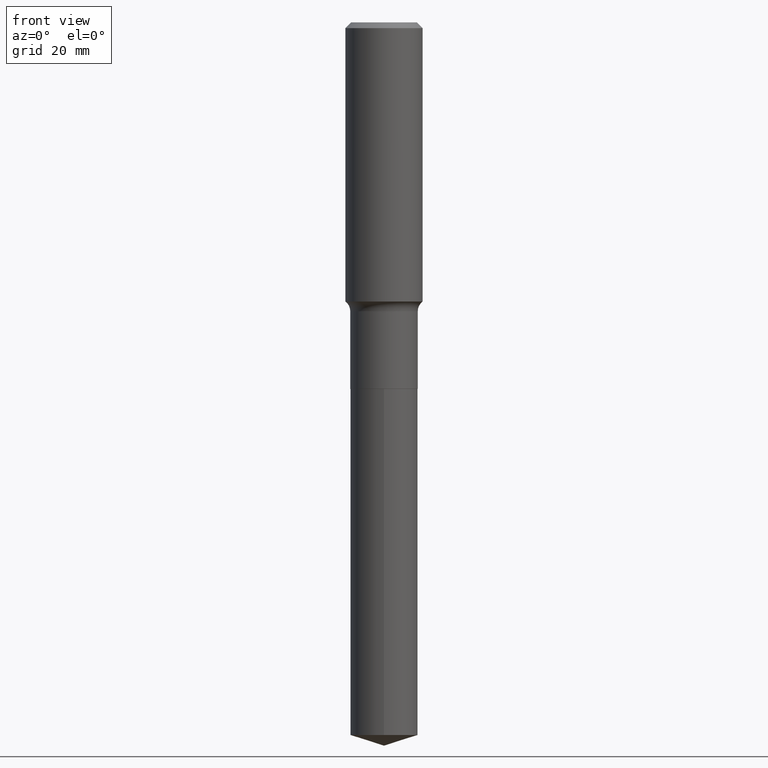
[diagram: clean part render]
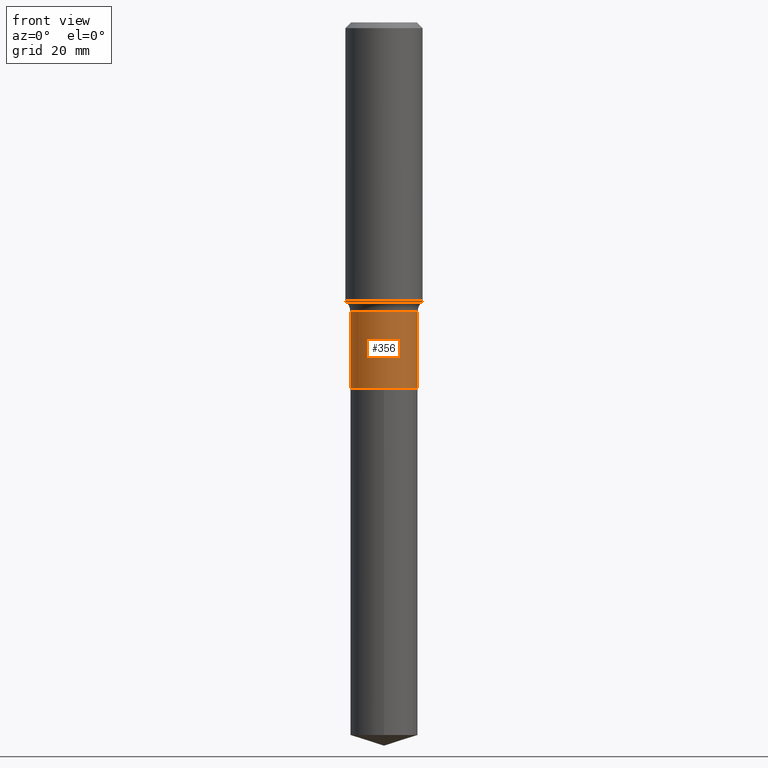
[diagram: same view with one face highlighted and labeled with its STEP entity id]
A machine part, front view. The second image highlights one B-rep face of the part: STEP entity #356.
In plain terms, the highlighted cylindrical surface (edge-blend (fillet) strip) has radius 5.5562 mm, axis along (-0, 0, 1).
Its self-contained STEP definition (entity closure, byte-faithful):
#11 = ORIENTED_EDGE ( 'NONE', *, *, #15, .F. ) ;
#13 = CARTESIAN_POINT ( 'NONE',  ( 0.2187499999999999445, -1.527523085743870449E-15, 1.066663669705360604E-29 ) ) ;
#15 = EDGE_CURVE ( 'NONE', #376, #310, #450, .T. ) ;
#52 = CARTESIAN_POINT ( 'NONE',  ( 5.806765680286607737E-29, -8.290522439083049403E-15, -2.374500000000000277 ) ) ;
#60 = DIRECTION ( 'NONE',  ( -2.445468806185136597E-29, 3.491481338843145583E-15, 1.000000000000000000 ) ) ;
#66 = DIRECTION ( 'NONE',  ( -2.445468806185136597E-29, 3.491481338843145583E-15, 1.000000000000000000 ) ) ;
#71 = LINE ( 'NONE', #303, #382 ) ;
#74 = EDGE_CURVE ( 'NONE', #75, #127, #160, .T. ) ;
#75 = VERTEX_POINT ( 'NONE', #167 ) ;
#78 = DIRECTION ( 'NONE',  ( -2.445468806185136877E-29, 3.491481338843145188E-15, 1.000000000000000000 ) ) ;
#111 = DIRECTION ( 'NONE',  ( 1.000000000000000000, -6.982962677686266711E-15, 4.876176775795935232E-29 ) ) ;
#117 = VECTOR ( 'NONE', #128, 39.37007874015748143 ) ;
#127 = VERTEX_POINT ( 'NONE', #323 ) ;
#128 = DIRECTION ( 'NONE',  ( -2.445468806185136877E-29, 3.491481338843145188E-15, 1.000000000000000000 ) ) ;
#151 = CARTESIAN_POINT ( 'NONE',  ( 0.2187499999999999167, -8.063227003924354650E-15, -1.871900000000000341 ) ) ;
#160 = CIRCLE ( 'NONE', #475, 0.2187500000000000000 ) ;
#167 = CARTESIAN_POINT ( 'NONE',  ( -0.2187500000000000000, -5.858800944156548632E-15, -2.374500000000000277 ) ) ;
#171 = ORIENTED_EDGE ( 'NONE', *, *, #440, .T. ) ;
#179 = AXIS2_PLACEMENT_3D ( 'NONE', #191, #66, #111 ) ;
#191 = CARTESIAN_POINT ( 'NONE',  ( 0.000000000000000000, 0.000000000000000000, 0.000000000000000000 ) ) ;
#196 = ORIENTED_EDGE ( 'NONE', *, *, #336, .F. ) ;
#208 = DIRECTION ( 'NONE',  ( 1.000000000000000000, -6.982962677686262766E-15, 0.000000000000000000 ) ) ;
#211 = DIRECTION ( 'NONE',  ( 1.000000000000000000, -6.982962677686265922E-15, 0.000000000000000000 ) ) ;
#224 = ORIENTED_EDGE ( 'NONE', *, *, #74, .T. ) ;
#259 = CARTESIAN_POINT ( 'NONE',  ( -0.2187499999999999167, -5.858800944156548632E-15, -1.871900000000000341 ) ) ;
#282 = CARTESIAN_POINT ( 'NONE',  ( 4.577673058297957768E-29, -6.535703918180485385E-15, -1.871900000000000341 ) ) ;
#303 = CARTESIAN_POINT ( 'NONE',  ( -0.2187499999999999445, 1.554312234475218762E-15, -1.076017050993260482E-29 ) ) ;
#310 = VERTEX_POINT ( 'NONE', #151 ) ;
#311 = LINE ( 'NONE', #13, #117 ) ;
#313 = AXIS2_PLACEMENT_3D ( 'NONE', #282, #324, #211 ) ;
#323 = CARTESIAN_POINT ( 'NONE',  ( 0.2187500000000000000, -9.818045524826919457E-15, -2.374500000000000277 ) ) ;
#324 = DIRECTION ( 'NONE',  ( -2.445468806185136597E-29, 3.491481338843145583E-15, 1.000000000000000000 ) ) ;
#336 = EDGE_CURVE ( 'NONE', #75, #376, #71, .T. ) ;
#338 = FACE_OUTER_BOUND ( 'NONE', #340, .T. ) ;
#340 = EDGE_LOOP ( 'NONE', ( #196, #224, #171, #11 ) ) ;
#356 = ADVANCED_FACE ( 'NONE', ( #338 ), #414, .T. ) ;
#376 = VERTEX_POINT ( 'NONE', #259 ) ;
#382 = VECTOR ( 'NONE', #78, 39.37007874015748143 ) ;
#414 = CYLINDRICAL_SURFACE ( 'NONE', #179, 0.2187499999999999445 ) ;
#440 = EDGE_CURVE ( 'NONE', #127, #310, #311, .T. ) ;
#450 = CIRCLE ( 'NONE', #313, 0.2187499999999999167 ) ;
#475 = AXIS2_PLACEMENT_3D ( 'NONE', #52, #60, #208 ) ;